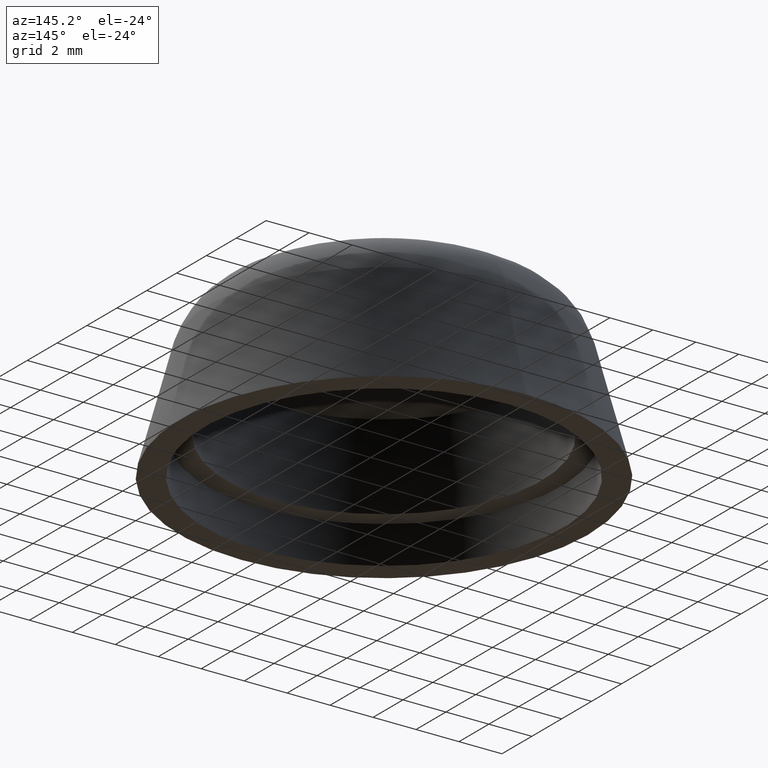
[diagram: clean part render]
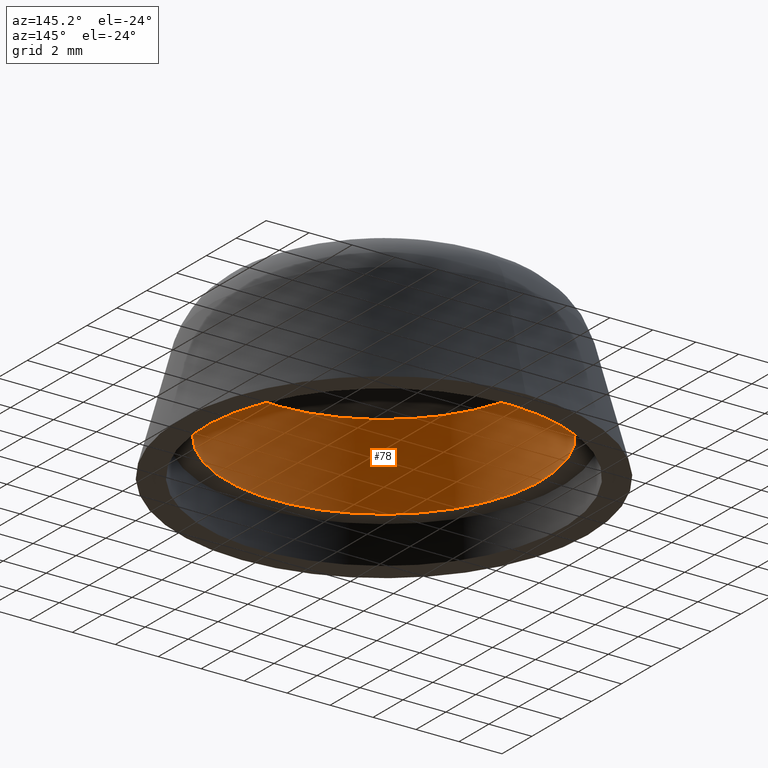
[diagram: same view with one face highlighted and labeled with its STEP entity id]
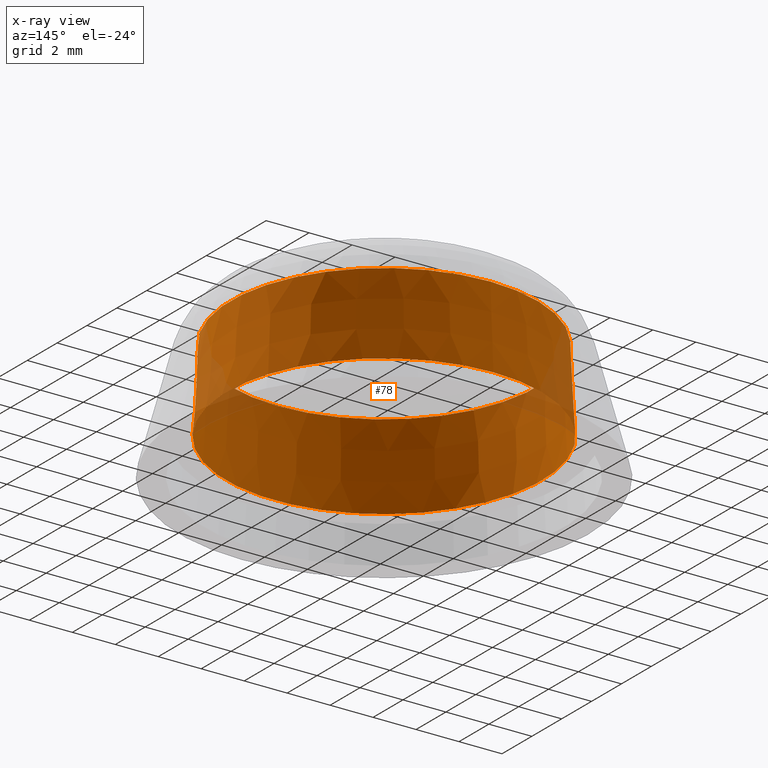
[diagram: x-ray of the same camera — body ghosted, the highlighted face saturated]
A machine part, auxiliary view. The second image highlights one B-rep face of the part: STEP entity #78.
The next image is the same camera in x-ray: the body ghosted, the highlighted face saturated — about 8% of this face is hidden behind the body in this view.
In plain terms, the highlighted conical surface has half-angle 3 deg.
Its self-contained STEP definition (entity closure, byte-faithful):
#78 = ADVANCED_FACE( '', ( #93, #94 ), #95, .F. );
#93 = FACE_OUTER_BOUND( '', #153, .T. );
#94 = FACE_BOUND( '', #154, .T. );
#95 = CONICAL_SURFACE( '', #155, 7.12184121559185, 0.0523598775598277 );
#153 = EDGE_LOOP( '', ( #182 ) );
#154 = EDGE_LOOP( '', ( #183 ) );
#155 = AXIS2_PLACEMENT_3D( '', #184, #185, #186 );
#182 = ORIENTED_EDGE( '', *, *, #216, .T. );
#183 = ORIENTED_EDGE( '', *, *, #215, .F. );
#184 = CARTESIAN_POINT( '', ( 0.000000000000000, -2.55180545282442E-017, 5.58324477986588 ) );
#185 = DIRECTION( '', ( 0.000000000000000, -6.12303176911189E-017, -1.00000000000000 ) );
#186 = DIRECTION( '', ( 0.000000000000000, 1.00000000000000, -6.12303176911189E-017 ) );
#215 = EDGE_CURVE( '', #225, #225, #226, .T. );
#216 = EDGE_CURVE( '', #227, #227, #228, .T. );
#225 = VERTEX_POINT( '', #241 );
#226 = CIRCLE( '', #242, 7.12184121559185 );
#227 = VERTEX_POINT( '', #243 );
#228 = CIRCLE( '', #244, 7.32482937312425 );
#241 = CARTESIAN_POINT( '', ( 0.000000000000000, 7.12184121559185, 5.58324477986588 ) );
#242 = AXIS2_PLACEMENT_3D( '', #259, #260, #261 );
#243 = CARTESIAN_POINT( '', ( 0.000000000000000, 7.32482937312425, 1.71000000000001 ) );
#244 = AXIS2_PLACEMENT_3D( '', #262, #263, #264 );
#259 = CARTESIAN_POINT( '', ( 0.000000000000000, -2.55180545282442E-017, 5.58324477986588 ) );
#260 = DIRECTION( '', ( 0.000000000000000, -6.12303176911189E-017, -1.00000000000000 ) );
#261 = DIRECTION( '', ( 0.000000000000000, 1.00000000000000, -6.12303176911189E-017 ) );
#262 = CARTESIAN_POINT( '', ( 0.000000000000000, -2.62678062894899E-016, 1.71000000000001 ) );
#263 = DIRECTION( '', ( 0.000000000000000, -6.12303176911189E-017, -1.00000000000000 ) );
#264 = DIRECTION( '', ( 0.000000000000000, 1.00000000000000, -6.12303176911189E-017 ) );